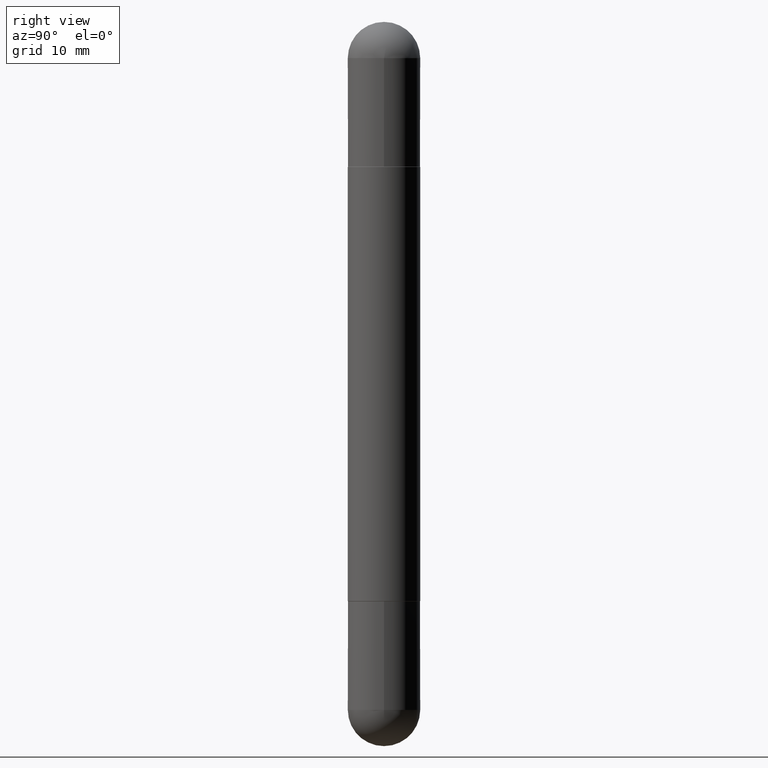
[diagram: clean part render]
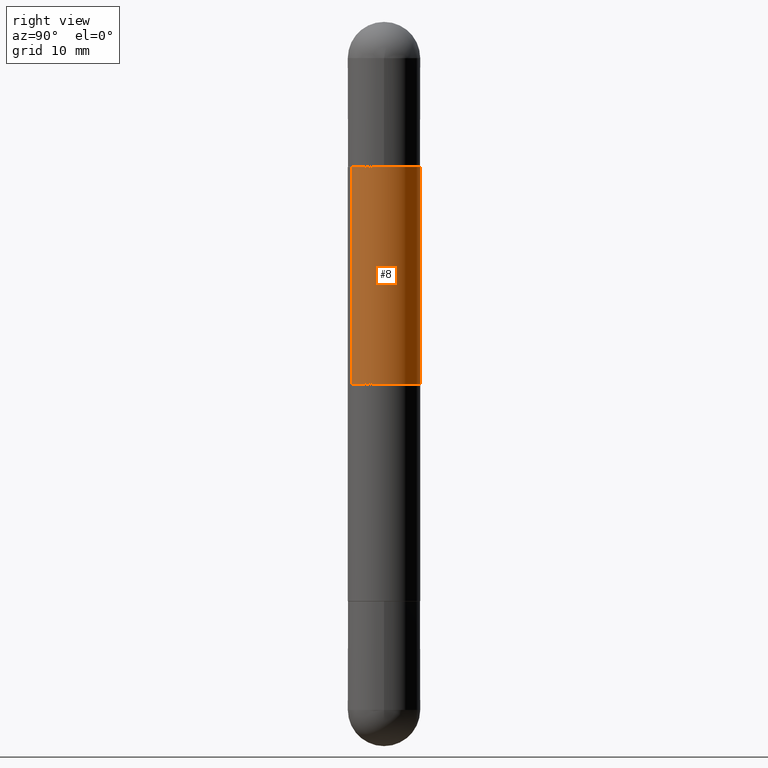
[diagram: same view with one face highlighted and labeled with its STEP entity id]
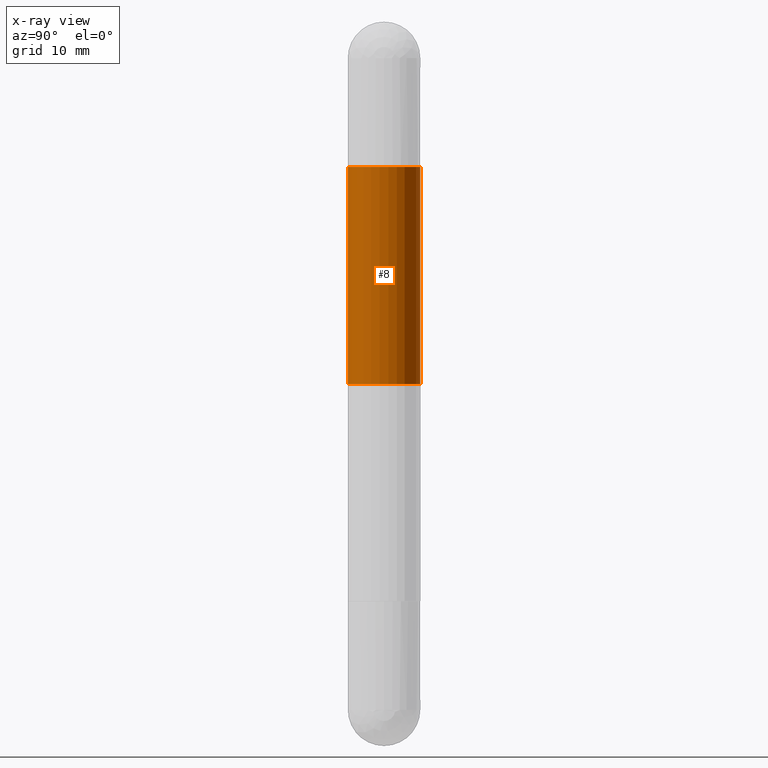
[diagram: x-ray of the same camera — body ghosted, the highlighted face saturated]
A machine part, right view. The second image highlights one B-rep face of the part: STEP entity #8.
The next image is the same camera in x-ray: the body ghosted, the highlighted face saturated — about 0% of this face is hidden behind the body in this view.
In plain terms, the highlighted cylindrical surface (edge-blend (fillet) strip) has radius 3.175 mm, axis along (-0, 0, -1).
Its self-contained STEP definition (entity closure, byte-faithful):
#8 = ADVANCED_FACE ( 'NONE', ( #438 ), #304, .T. ) ;
#70 = DIRECTION ( 'NONE',  ( -2.445190853469272491E-29, 3.491879382952348982E-15, -1.000000000000000000 ) ) ;
#139 = LINE ( 'NONE', #395, #275 ) ;
#146 = CIRCLE ( 'NONE', #416, 0.1250000000000002776 ) ;
#160 = CARTESIAN_POINT ( 'NONE',  ( 8.575622497214423328E-16, 0.1250000000000001388, -2.500000000000000000 ) ) ;
#181 = DIRECTION ( 'NONE',  ( -6.982962677686265922E-15, -1.000000000000000000, -4.370956789862816416E-15 ) ) ;
#192 = CARTESIAN_POINT ( 'NONE',  ( 8.575622497214919324E-16, 0.1249999999999932693, -0.5010000000000006670 ) ) ;
#232 = CARTESIAN_POINT ( 'NONE',  ( 4.887936516085074964E-29, -6.980266886521743346E-15, -0.5010000000000010001 ) ) ;
#240 = VERTEX_POINT ( 'NONE', #192 ) ;
#250 = CARTESIAN_POINT ( 'NONE',  ( 0.000000000000000000, 0.000000000000000000, -2.500000000000000444 ) ) ;
#275 = VECTOR ( 'NONE', #70, 39.37007874015748143 ) ;
#279 = CARTESIAN_POINT ( 'NONE',  ( 3.056488566836591455E-29, -4.364849228690437312E-15, -1.250000000000000222 ) ) ;
#298 = EDGE_LOOP ( 'NONE', ( #356, #440, #466, #588 ) ) ;
#299 = EDGE_CURVE ( 'NONE', #471, #490, #139, .T. ) ;
#304 = CYLINDRICAL_SURFACE ( 'NONE', #774, 0.1250000000000001388 ) ;
#333 = DIRECTION ( 'NONE',  ( -1.000000000000000000, 0.000000000000000000, 0.000000000000000000 ) ) ;
#356 = ORIENTED_EDGE ( 'NONE', *, *, #792, .F. ) ;
#395 = CARTESIAN_POINT ( 'NONE',  ( -8.728703347107842263E-16, -0.1250000000000001388, -2.500000000000001332 ) ) ;
#416 = AXIS2_PLACEMENT_3D ( 'NONE', #232, #731, #542 ) ;
#422 = LINE ( 'NONE', #160, #750 ) ;
#438 = FACE_OUTER_BOUND ( 'NONE', #298, .T. ) ;
#440 = ORIENTED_EDGE ( 'NONE', *, *, #763, .F. ) ;
#457 = CARTESIAN_POINT ( 'NONE',  ( -8.728703347107444874E-16, -0.1250000000000044964, -1.250000000000000222 ) ) ;
#461 = AXIS2_PLACEMENT_3D ( 'NONE', #279, #479, #333 ) ;
#466 = ORIENTED_EDGE ( 'NONE', *, *, #299, .T. ) ;
#471 = VERTEX_POINT ( 'NONE', #577 ) ;
#479 = DIRECTION ( 'NONE',  ( -0.000000000000000000, -0.000000000000000000, -1.000000000000000000 ) ) ;
#490 = VERTEX_POINT ( 'NONE', #457 ) ;
#542 = DIRECTION ( 'NONE',  ( -6.982962677686265922E-15, -1.000000000000000000, -3.278217592397108762E-15 ) ) ;
#549 = DIRECTION ( 'NONE',  ( -2.445190853469272491E-29, 3.491879382952348982E-15, -1.000000000000000000 ) ) ;
#577 = CARTESIAN_POINT ( 'NONE',  ( -8.728703347107364016E-16, -0.1250000000000072720, -0.5010000000000014442 ) ) ;
#588 = ORIENTED_EDGE ( 'NONE', *, *, #661, .F. ) ;
#590 = CARTESIAN_POINT ( 'NONE',  ( 8.575622497214909463E-16, 0.1249999999999957673, -1.250000000000000222 ) ) ;
#612 = DIRECTION ( 'NONE',  ( -2.445190853469272491E-29, 3.491879382952348982E-15, -1.000000000000000000 ) ) ;
#661 = EDGE_CURVE ( 'NONE', #691, #490, #669, .T. ) ;
#669 = CIRCLE ( 'NONE', #461, 0.1250000000000001388 ) ;
#691 = VERTEX_POINT ( 'NONE', #590 ) ;
#731 = DIRECTION ( 'NONE',  ( 2.445190853469272491E-29, -3.491879382952348982E-15, 1.000000000000000000 ) ) ;
#750 = VECTOR ( 'NONE', #549, 39.37007874015748143 ) ;
#763 = EDGE_CURVE ( 'NONE', #471, #240, #146, .T. ) ;
#774 = AXIS2_PLACEMENT_3D ( 'NONE', #250, #612, #181 ) ;
#792 = EDGE_CURVE ( 'NONE', #240, #691, #422, .T. ) ;